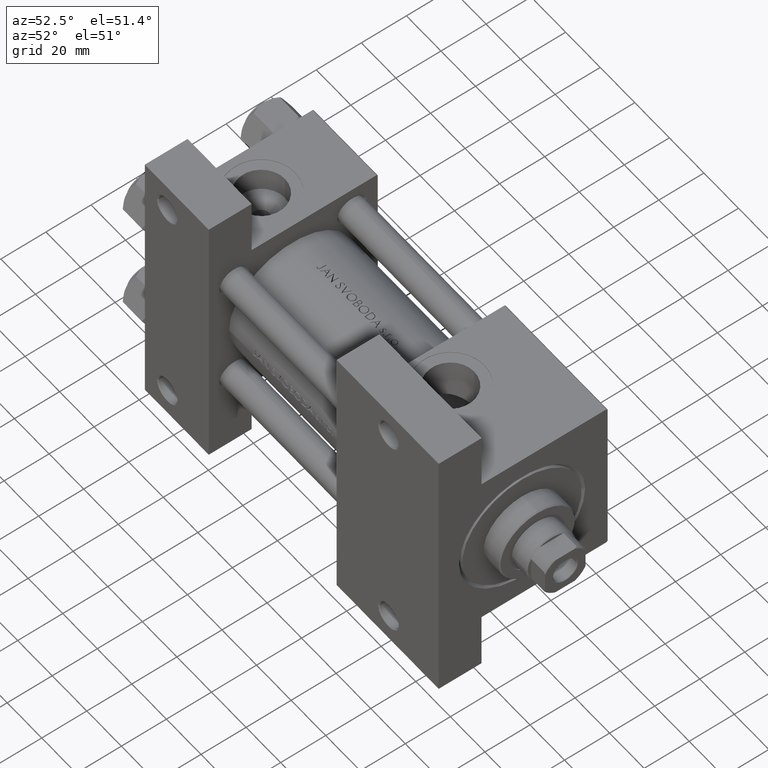
[diagram: clean part render]
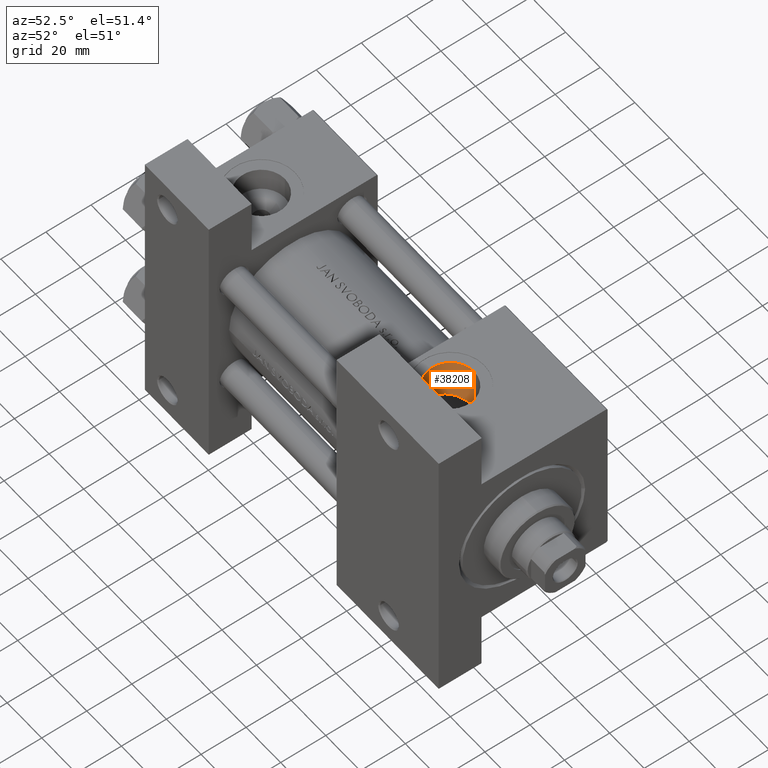
[diagram: same view with one face highlighted and labeled with its STEP entity id]
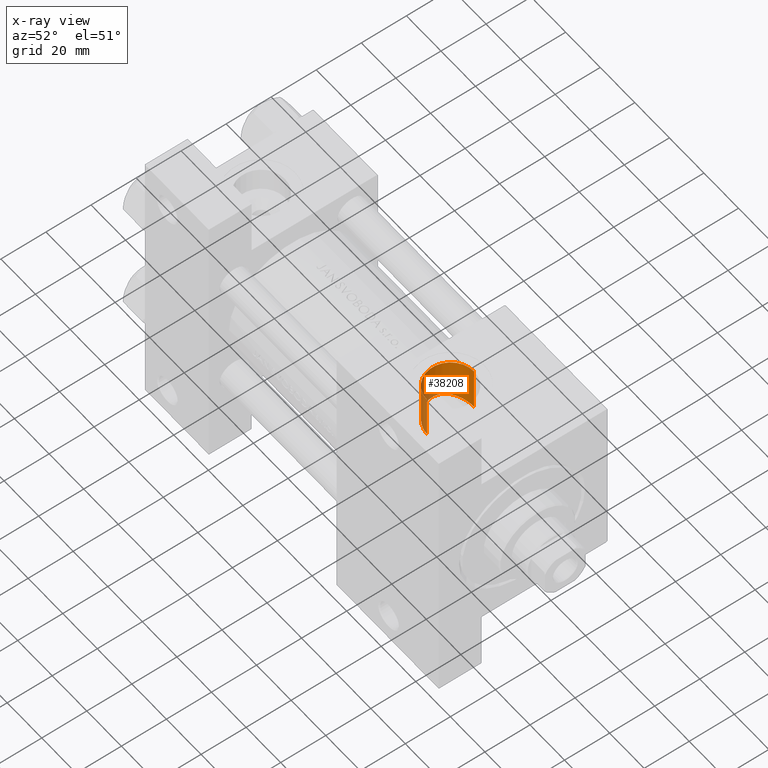
[diagram: x-ray of the same camera — body ghosted, the highlighted face saturated]
A machine part, auxiliary view. The second image highlights one B-rep face of the part: STEP entity #38208.
The next image is the same camera in x-ray: the body ghosted, the highlighted face saturated — about 22% of this face is hidden behind the body in this view.
In plain terms, the highlighted cylindrical surface (edge-blend (fillet) strip) has radius 10.48 mm, axis along (-0, -0, 1).
Its self-contained STEP definition (entity closure, byte-faithful):
#345 = CARTESIAN_POINT ( 'NONE',  ( 117.8700277560726875, -20.38347105376920254, -2.708475799773464754 ) ) ;
#761 = FACE_OUTER_BOUND ( 'NONE', #28284, .T. ) ;
#1255 = B_SPLINE_CURVE_WITH_KNOTS ( 'NONE', 3,
 ( #31603, #46802, #12679, #17302, #43052, #13576, #39977, #21035, #32512, #28771, #43953, #25028, #40222, #37716, #11553, #22269, #22508, #49168, #30490, #37965, #41199, #345, #18773, #33976, #29748, #26750, #26017, #45928, #48674, #15044, #11808, #41442, #11309, #30738, #14798, #30248, #45188, #3096, #40950, #34463, #19018, #33474, #45430, #34226, #14542, #26499, #3831, #19256, #11070, #41935 ),
 .UNSPECIFIED., .F., .F.,
 ( 4, 2, 2, 2, 2, 2, 2, 2, 2, 2, 2, 2, 2, 2, 2, 2, 2, 2, 2, 2, 2, 2, 2, 2, 4 ),
 ( 0.000000000000000000, 0.002085732680859704417, 0.003128599021289557060, 0.004171465361719448733, 0.006257198042579193917, 0.007300064383009068243, 0.008342930723438942570, 0.009385797063868816029, 0.01042866340429869122, 0.01251439608515841212, 0.01355726242558828211, 0.01460012876601815036, 0.01668586144687789555, 0.01772872778730777074, 0.01877159412773764247, 0.01981446046816752113, 0.02085732680859739285, 0.02294305948945712242, 0.02398592582988699068, 0.02502879217031685546, 0.02711452485117659197, 0.02920025753203632848, 0.03024312387246619327, 0.03128599021289606152, 0.03337172289375579803 ),
 .UNSPECIFIED. ) ;
#1707 = VERTEX_POINT ( 'NONE', #24077 ) ;
#3096 = CARTESIAN_POINT ( 'NONE',  ( 120.1545344758438461, -19.09783805311037952, 6.956499678098870376 ) ) ;
#3831 = CARTESIAN_POINT ( 'NONE',  ( 125.5877247240033938, -17.48338598744717842, 10.20456839096644686 ) ) ;
#4254 = VERTEX_POINT ( 'NONE', #41799 ) ;
#6799 = CARTESIAN_POINT ( 'NONE',  ( 128.0000000000000000, -17.90669148670408362, -10.47999999999998089 ) ) ;
#7725 = DIRECTION ( 'NONE',  ( 0.000000000000000000, -1.000000000000000000, -8.673617379884036705E-17 ) ) ;
#8430 = VERTEX_POINT ( 'NONE', #40943 ) ;
#8632 = LINE ( 'NONE', #38770, #32354 ) ;
#9113 = AXIS2_PLACEMENT_3D ( 'NONE', #23672, #27155, #42592 ) ;
#11070 = CARTESIAN_POINT ( 'NONE',  ( 127.3044545345209997, -17.31154528053461661, 10.47999999999998977 ) ) ;
#11309 = CARTESIAN_POINT ( 'NONE',  ( 118.2215461673904713, -20.04967575897763510, 3.785508326117120959 ) ) ;
#11553 = CARTESIAN_POINT ( 'NONE',  ( 120.1121230715596084, -19.47452367214849289, -6.908494176797784547 ) ) ;
#11808 = CARTESIAN_POINT ( 'NONE',  ( 117.8951751743530707, -20.23535558307758109, 2.800358647656731925 ) ) ;
#12679 = CARTESIAN_POINT ( 'NONE',  ( 126.6018487986952721, -17.94656342485971479, -10.40934886090304268 ) ) ;
#13576 = CARTESIAN_POINT ( 'NONE',  ( 124.5836453213384232, -18.21117968299173029, -9.913622529243987458 ) ) ;
#13658 = DIRECTION ( 'NONE',  ( -0.000000000000000000, -1.000000000000000000, -8.673617379884036705E-17 ) ) ;
#14542 = CARTESIAN_POINT ( 'NONE',  ( 124.5915143732481454, -17.65692230102833804, 9.916186572683962197 ) ) ;
#14798 = CARTESIAN_POINT ( 'NONE',  ( 118.9495768395414927, -19.66322346998767046, 5.326983638994164494 ) ) ;
#15044 = CARTESIAN_POINT ( 'NONE',  ( 117.8085289422962205, -20.28709306372374854, 2.466525892830132349 ) ) ;
#15755 = ORIENTED_EDGE ( 'NONE', *, *, #29897, .T. ) ;
#16246 = EDGE_CURVE ( 'NONE', #46663, #8430, #1255, .T. ) ;
#16597 = ORIENTED_EDGE ( 'NONE', *, *, #37004, .F. ) ;
#17302 = CARTESIAN_POINT ( 'NONE',  ( 125.5843153394802272, -18.05810427117003059, -10.20365670940337210 ) ) ;
#18773 = CARTESIAN_POINT ( 'NONE',  ( 117.7848721841020421, -20.41767756798353872, -2.366995833931134108 ) ) ;
#19018 = CARTESIAN_POINT ( 'NONE',  ( 121.6096037740494467, -18.50380750299995825, 8.333875197508964661 ) ) ;
#19256 = CARTESIAN_POINT ( 'NONE',  ( 126.6144639565822416, -17.35559248084098627, 10.41144764597006578 ) ) ;
#21035 = CARTESIAN_POINT ( 'NONE',  ( 123.3089432184007137, -18.47132649600307630, -9.396531025392587111 ) ) ;
#21667 = EDGE_CURVE ( 'NONE', #8430, #4254, #8632, .T. ) ;
#22269 = CARTESIAN_POINT ( 'NONE',  ( 119.6811096513063575, -19.63967553149034728, -6.382942706579984637 ) ) ;
#22508 = CARTESIAN_POINT ( 'NONE',  ( 119.4759556616729128, -19.72067553347482871, -6.106406543856685687 ) ) ;
#22908 = CARTESIAN_POINT ( 'NONE',  ( 128.0000000000000000, -37.29999999999999716, 3.486794186713383443E-15 ) ) ;
#23672 = CARTESIAN_POINT ( 'NONE',  ( 128.0000000000000000, 37.50100000000000477, 9.974746723040443104E-15 ) ) ;
#24077 = CARTESIAN_POINT ( 'NONE',  ( 128.0000000000000000, -37.29999999999999716, -10.47999999999998266 ) ) ;
#24518 = CIRCLE ( 'NONE', #44383, 10.47999999999998622 ) ;
#25028 = CARTESIAN_POINT ( 'NONE',  ( 121.0649927009445150, -19.13289277132431110, -7.864532804023768087 ) ) ;
#26017 = CARTESIAN_POINT ( 'NONE',  ( 117.5411270509842012, -20.46474067275494235, 0.7514081746990680655 ) ) ;
#26499 = CARTESIAN_POINT ( 'NONE',  ( 125.2485603725488659, -17.53617776474739998, 10.11820687614873115 ) ) ;
#26750 = CARTESIAN_POINT ( 'NONE',  ( 117.5217053303388326, -20.48332967077006472, 0.3975496392329749828 ) ) ;
#27155 = DIRECTION ( 'NONE',  ( -0.000000000000000000, -1.000000000000000000, -8.673617379884036705E-17 ) ) ;
#28284 = EDGE_LOOP ( 'NONE', ( #31726, #37301, #15755, #16597 ) ) ;
#28771 = CARTESIAN_POINT ( 'NONE',  ( 121.8618195419077068, -18.87524337706393496, -8.501152861621337209 ) ) ;
#29748 = CARTESIAN_POINT ( 'NONE',  ( 117.5169168091323257, -20.51137673509301607, -0.6516029565374283905 ) ) ;
#29897 = EDGE_CURVE ( 'NONE', #4254, #1707, #24518, .T. ) ;
#30248 = CARTESIAN_POINT ( 'NONE',  ( 119.5187940887307860, -19.38832963419614330, 6.165523076675711422 ) ) ;
#30490 = CARTESIAN_POINT ( 'NONE',  ( 118.5840202247433979, -20.08544715864210772, -4.651927720320706783 ) ) ;
#30738 = CARTESIAN_POINT ( 'NONE',  ( 118.6245642930966113, -19.83139452378804535, 4.733173975255225763 ) ) ;
#31603 = CARTESIAN_POINT ( 'NONE',  ( 128.0000000000000000, -17.90669148670408362, -10.47999999999998089 ) ) ;
#31726 = ORIENTED_EDGE ( 'NONE', *, *, #16246, .T. ) ;
#32354 = VECTOR ( 'NONE', #34775, 1000.000000000000000 ) ;
#32512 = CARTESIAN_POINT ( 'NONE',  ( 122.7109170005340957, -18.62590504215679843, -9.073138281531829108 ) ) ;
#32596 = LINE ( 'NONE', #47781, #33741 ) ;
#33474 = CARTESIAN_POINT ( 'NONE',  ( 122.7374011664607281, -18.12441261360091005, 9.088217275655866345 ) ) ;
#33741 = VECTOR ( 'NONE', #13658, 1000.000000000000000 ) ;
#33976 = CARTESIAN_POINT ( 'NONE',  ( 117.5830884358184392, -20.49411676436530172, -1.342674851160322369 ) ) ;
#34226 = CARTESIAN_POINT ( 'NONE',  ( 124.2712649677957586, -17.72514759185509803, 9.800086280978518971 ) ) ;
#34463 = CARTESIAN_POINT ( 'NONE',  ( 121.0925800491787214, -18.70257500022393060, 7.909780117561125756 ) ) ;
#34775 = DIRECTION ( 'NONE',  ( -0.000000000000000000, -1.000000000000000000, -8.673617379884036705E-17 ) ) ;
#37004 = EDGE_CURVE ( 'NONE', #46663, #1707, #32596, .T. ) ;
#37301 = ORIENTED_EDGE ( 'NONE', *, *, #21667, .T. ) ;
#37716 = CARTESIAN_POINT ( 'NONE',  ( 120.3390100190131449, -19.38994764023254547, -7.159155389767041910 ) ) ;
#37965 = CARTESIAN_POINT ( 'NONE',  ( 118.1894306476518182, -20.25102656977831472, -3.701459934073191960 ) ) ;
#38114 = CYLINDRICAL_SURFACE ( 'NONE', #9113, 10.47999999999998622 ) ;
#38208 = ADVANCED_FACE ( 'NONE', ( #761 ), #38114, .F. ) ;
#38770 = CARTESIAN_POINT ( 'NONE',  ( 128.0000000000000000, 37.50100000000000477, 10.47999999999999687 ) ) ;
#39977 = CARTESIAN_POINT ( 'NONE',  ( 124.2574528650404346, -18.27226487592814408, -9.794965196591768120 ) ) ;
#40222 = CARTESIAN_POINT ( 'NONE',  ( 120.8154452386611979, -19.21913497042929819, -7.637175280490514417 ) ) ;
#40943 = CARTESIAN_POINT ( 'NONE',  ( 128.0000000000000000, -17.31154528053461306, 10.47999999999999154 ) ) ;
#40950 = CARTESIAN_POINT ( 'NONE',  ( 120.3809730746911555, -18.99918516550076575, 7.203644680487131247 ) ) ;
#41199 = CARTESIAN_POINT ( 'NONE',  ( 118.0726434498571535, -20.29999609518735681, -3.376354653621497892 ) ) ;
#41442 = CARTESIAN_POINT ( 'NONE',  ( 118.1012934303698785, -20.11685413836227809, 3.459060791729253737 ) ) ;
#41799 = CARTESIAN_POINT ( 'NONE',  ( 128.0000000000000000, -37.29999999999999716, 10.47999999999998977 ) ) ;
#41935 = CARTESIAN_POINT ( 'NONE',  ( 128.0000000000000000, -17.31154528053461306, 10.47999999999999154 ) ) ;
#42592 = DIRECTION ( 'NONE',  ( 0.000000000000000000, 0.000000000000000000, -1.000000000000000000 ) ) ;
#43052 = CARTESIAN_POINT ( 'NONE',  ( 125.2485181366844955, -18.10389330548456144, -10.11833674566095276 ) ) ;
#43953 = CARTESIAN_POINT ( 'NONE',  ( 121.5874752611917700, -18.96115153041447243, -8.296067076494239245 ) ) ;
#44383 = AXIS2_PLACEMENT_3D ( 'NONE', #22908, #7725, #45835 ) ;
#45188 = CARTESIAN_POINT ( 'NONE',  ( 119.7233602415655724, -19.29242988523072810, 6.437503504559507483 ) ) ;
#45430 = CARTESIAN_POINT ( 'NONE',  ( 123.3335954883717847, -17.94904599600547357, 9.408192873974179804 ) ) ;
#45835 = DIRECTION ( 'NONE',  ( 0.000000000000000000, 0.000000000000000000, -1.000000000000000000 ) ) ;
#45928 = CARTESIAN_POINT ( 'NONE',  ( 117.6144618885457902, -20.41033060918976005, 1.446801902193832534 ) ) ;
#46663 = VERTEX_POINT ( 'NONE', #6799 ) ;
#46802 = CARTESIAN_POINT ( 'NONE',  ( 127.2936450912457786, -17.90669148670408006, -10.47999999999998089 ) ) ;
#47781 = CARTESIAN_POINT ( 'NONE',  ( 128.0000000000000000, 37.50100000000000477, -10.47999999999997556 ) ) ;
#48674 = CARTESIAN_POINT ( 'NONE',  ( 117.6681735545246426, -20.37457923911943780, 1.789747077269111308 ) ) ;
#49168 = CARTESIAN_POINT ( 'NONE',  ( 118.9055833317326147, -19.95017549749733377, -5.252667561004573216 ) ) ;